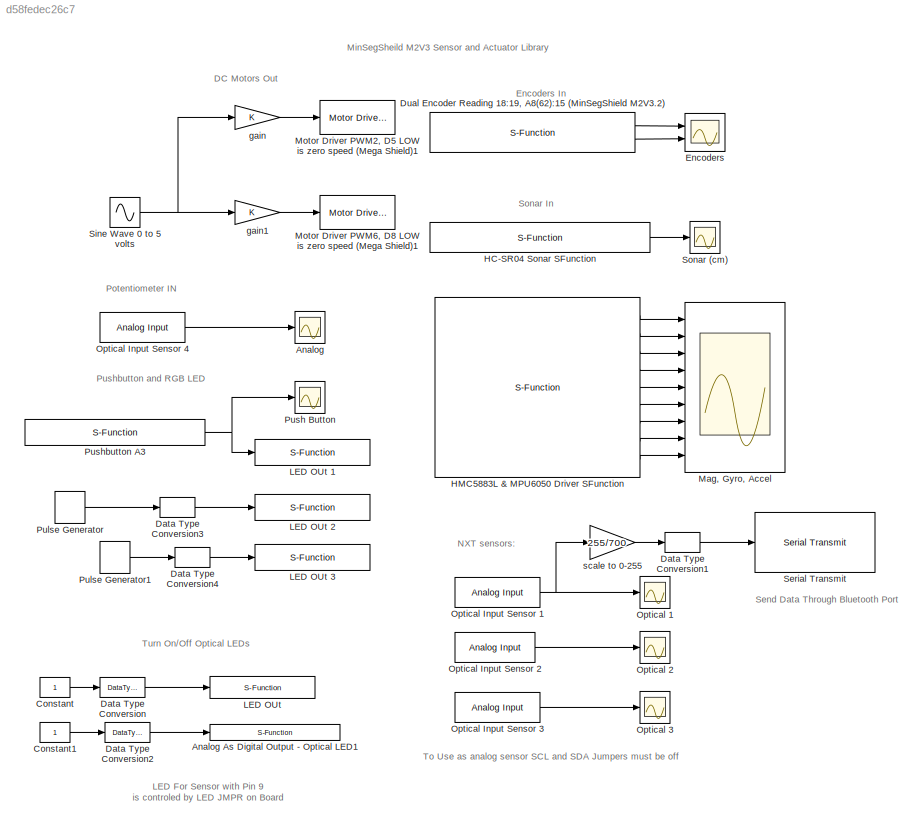
MODEL slx_d58fedec26c7
KIND model
BLOCK [Scope] Analog
  DataFormat = StructureWithTime
  Floating = off
  NumInputPorts = 1
  Ports = [1]
  SampleTime = 0
  SaveName = ScopeData6
  ShowLegends = off
  TimeRange = 30
  YMax = 1000
  YMin = 0
BLOCK [S-Function] Analog As Digital Output - Optical LED1
  CopyFcn = set_param(gcbh,'LinkStatus','none')
  EnableBusSupport = off
  FunctionName = sfcn_A2_out
  InitFcn = try, set_param(gcb,'FunctionName','sfcn_A2_out'), end
  OpenFcn = sfunctionwizard(gcbh)
  Parameters = uint8(12)
  Ports = [1]
  PreSaveFcn = try, set_param(gcb,'FunctionName','sfcn_A2_out'), end
  SFunctionModules = sfcn_A2_out_wrapper
BLOCK [Constant] Constant
  SampleTime = -1
BLOCK [Constant] Constant1
  SampleTime = -1
BLOCK [DataTypeConversion] Data Type Conversion
  OutDataTypeStr = boolean
  RndMeth = Floor
  SaturateOnIntegerOverflow = off
BLOCK [DataTypeConversion] Data Type Conversion1
  OutDataTypeStr = uint8
  RndMeth = Floor
  SaturateOnIntegerOverflow = off
BLOCK [DataTypeConversion] Data Type Conversion2
  OutDataTypeStr = boolean
  RndMeth = Floor
  SaturateOnIntegerOverflow = off
BLOCK [DataTypeConversion] Data Type Conversion3
  OutDataTypeStr = boolean
  RndMeth = Floor
  SaturateOnIntegerOverflow = off
BLOCK [DataTypeConversion] Data Type Conversion4
  OutDataTypeStr = boolean
  RndMeth = Floor
  SaturateOnIntegerOverflow = off
BLOCK [S-Function] Dual Encoder Reading 18:19, A8(62):15 (MinSegShield M2V3.2) 
  CopyFcn = set_param(gcbh,'LinkStatus','none')
  EnableBusSupport = off
  FunctionName = sf_QuadEncoder_18_19_15_62
  InitFcn = try, set_param(gcb,'FunctionName','sf_QuadEncoder_18_19_15_62'), end
  OpenFcn = sfunctionwizard(gcbh)
  Parameters = uint8([0 1]),uint8([18 62]),uint8([19 15])
  Ports = [0, 2]
  PreSaveFcn = try, set_param(gcb,'FunctionName','sf_QuadEncoder_18_19_15_62'), end
  SFunctionModules = sf_QuadEncoder_18_19_15_62_wrapper
BLOCK [Scope] Encoders
  DataFormat = StructureWithTime
  Floating = off
  NumInputPorts = 2
  Ports = [2]
  SampleTime = 0
  ShowLegends = off
  TimeRange = 10
  YMax = 2700~-500
  YMin = 1700~-1500
BLOCK [S-Function] HC-SR04 Sonar SFunction
  CopyFcn = set_param(gcbh,'LinkStatus','none')
  EnableBusSupport = off
  FunctionName = sf_HCSR04_12_11
  InitFcn = try, set_param(gcb,'FunctionName','sf_HCSR04_12_11'), end
  OpenFcn = sfunctionwizard(gcbh)
  Ports = [0, 1]
  PreSaveFcn = try, set_param(gcb,'FunctionName','sf_HCSR04_12_11'), end
  SFunctionModules = sf_HCSR04_12_11_wrapper
BLOCK [S-Function] HMC5883L & MPU6050 Driver SFunction
  CopyFcn = set_param(gcbh,'LinkStatus','none')
  EnableBusSupport = off
  FunctionName = sf_HMC5883L_MPU6050
  InitFcn = try, set_param(gcb,'FunctionName','sf_HMC5883L_MPU6050'), end
  OpenFcn = sfunctionwizard(gcbh)
  Ports = [0, 9]
  PreSaveFcn = try, set_param(gcb,'FunctionName','sf_HMC5883L_MPU6050'), end
  SFunctionModules = sf_HMC5883L_MPU6050_wrapper
BLOCK [S-Function] LED OUt 
  CopyFcn = set_param(gcbh,'LinkStatus','none')
  EnableBusSupport = off
  FunctionName = sfcn_A11_out
  InitFcn = try, set_param(gcb,'FunctionName','sfcn_A11_out'), end
  OpenFcn = sfunctionwizard(gcbh)
  Parameters = uint8(12)
  Ports = [1]
  PreSaveFcn = try, set_param(gcb,'FunctionName','sfcn_A11_out'), end
  SFunctionModules = sfcn_A11_out_wrapper
BLOCK [S-Function] LED OUt 1
  CopyFcn = set_param(gcbh,'LinkStatus','none')
  EnableBusSupport = off
  FunctionName = sfcn_A4_out
  InitFcn = try, set_param(gcb,'FunctionName','sfcn_A4_out'), end
  OpenFcn = sfunctionwizard(gcbh)
  Parameters = uint8(12)
  Ports = [1]
  PreSaveFcn = try, set_param(gcb,'FunctionName','sfcn_A4_out'), end
  SFunctionModules = sfcn_A4_out_wrapper
BLOCK [S-Function] LED OUt 2
  CopyFcn = set_param(gcbh,'LinkStatus','none')
  EnableBusSupport = off
  FunctionName = sfcn_A5_out
  InitFcn = try, set_param(gcb,'FunctionName','sfcn_A5_out'), end
  OpenFcn = sfunctionwizard(gcbh)
  Parameters = uint8(12)
  Ports = [1]
  PreSaveFcn = try, set_param(gcb,'FunctionName','sfcn_A5_out'), end
  SFunctionModules = sfcn_A5_out_wrapper
BLOCK [S-Function] LED OUt 3
  CopyFcn = set_param(gcbh,'LinkStatus','none')
  EnableBusSupport = off
  FunctionName = sfcn_A7_out
  InitFcn = try, set_param(gcb,'FunctionName','sfcn_A7_out'), end
  OpenFcn = sfunctionwizard(gcbh)
  Parameters = uint8(12)
  Ports = [1]
  PreSaveFcn = try, set_param(gcb,'FunctionName','sfcn_A7_out'), end
  SFunctionModules = sfcn_A7_out_wrapper
BLOCK [Scope] Mag, Gyro, Accel
  DataFormat = StructureWithTime
  Floating = off
  NumInputPorts = 9
  Ports = [9]
  SampleTime = 0
  SaveName = ScopeData1
  ShowLegends = off
  TimeRange = 10
  YMax = 20~-225~0~15000~5000~15000~3000~2500~20000
  YMin = -15~-375~-80~-15000~-6000~-20000~-500~-12500~11000
BLOCK [Reference] Motor Driver PWM2, D5 LOW is zero speed (Mega Shield)1  REF=MinSegLibrary_M2V3/Motor Driver
PWM2, D5
LOW is zero speed
(Mega Shield)
  Ports = [1]
  SourceBlock = MinSegLibrary_M2V3/Motor Driver\nPWM2, D5\nLOW is zero speed\n(Mega Shield)
  SourceType = SubSystem
BLOCK [Reference] Motor Driver PWM6, D8 LOW is zero speed (Mega Shield)1  REF=MinSegLibrary_M2V3/Motor Driver
PWM6, D8
LOW is zero speed
(Mega Shield)
  Ports = [1]
  SourceBlock = MinSegLibrary_M2V3/Motor Driver\nPWM6, D8\nLOW is zero speed\n(Mega Shield)
  SourceType = SubSystem
BLOCK [Scope] Optical 1
  DataFormat = StructureWithTime
  Floating = off
  NumInputPorts = 1
  Ports = [1]
  SampleTime = 0
  SaveName = ScopeData4
  ShowLegends = off
  TimeRange = 30
  YMax = 1000
  YMin = 0
BLOCK [Scope] Optical 2
  DataFormat = StructureWithTime
  Floating = off
  NumInputPorts = 1
  Ports = [1]
  SampleTime = 0
  SaveName = ScopeData3
  ShowLegends = off
  TimeRange = 30
  YMax = 1000
  YMin = 0
BLOCK [Scope] Optical 3
  DataFormat = StructureWithTime
  Floating = off
  NumInputPorts = 1
  Ports = [1]
  SampleTime = 0
  SaveName = ScopeData5
  ShowLegends = off
  TimeRange = 30
  YMax = 1000
  YMin = 0
BLOCK [Reference] Optical Input Sensor 1  REF=arduinolib/Analog Input
  Ports = [0, 1]
  SourceBlock = arduinolib/Analog Input
  SourceType = Arduino Analog Input
  pinNumber = 10
  sampleTime = -1
BLOCK [Reference] Optical Input Sensor 2  REF=arduinolib/Analog Input
  Ports = [0, 1]
  SourceBlock = arduinolib/Analog Input
  SourceType = Arduino Analog Input
  pinNumber = 1
  sampleTime = -1
BLOCK [Reference] Optical Input Sensor 3  REF=arduinolib/Analog Input
  Ports = [0, 1]
  SourceBlock = arduinolib/Analog Input
  SourceType = Arduino Analog Input
  pinNumber = 9
  sampleTime = -1
BLOCK [Reference] Optical Input Sensor 4  REF=arduinolib/Analog Input
  Ports = [0, 1]
  SourceBlock = arduinolib/Analog Input
  SourceType = Arduino Analog Input
  pinNumber = 0
  sampleTime = -1
BLOCK [DiscretePulseGenerator] Pulse Generator
  Period = 10
  Ports = [0, 1]
  PulseType = Time based
  PulseWidth = 50
BLOCK [DiscretePulseGenerator] Pulse Generator1
  Period = 5
  Ports = [0, 1]
  PulseType = Time based
  PulseWidth = 50
BLOCK [Scope] Push Button
  DataFormat = StructureWithTime
  Floating = off
  NumInputPorts = 1
  Ports = [1]
  SampleTime = 0
  SaveName = ScopeData7
  ShowLegends = off
  TimeRange = 30
  YMax = 1.05
  YMin = 0.95
BLOCK [S-Function] Pushbutton A3
  CopyFcn = set_param(gcbh,'LinkStatus','none')
  EnableBusSupport = off
  FunctionName = sfcn_A3_IN
  InitFcn = try, set_param(gcb,'FunctionName','sfcn_A3_IN'), end
  OpenFcn = sfunctionwizard(gcbh)
  Ports = [0, 1]
  PreSaveFcn = try, set_param(gcb,'FunctionName','sfcn_A3_IN'), end
  SFunctionModules = sfcn_A3_IN_wrapper
BLOCK [Reference] Serial Transmit  REF=arduinolib/Serial Transmit
  Ports = [1]
  SourceBlock = arduinolib/Serial Transmit
  SourceType = Arduino Serial Transmit
  portNumber = 2
BLOCK [Sin] Sine Wave 0 to 5 volts
  Amplitude = 5
  Frequency = 50*2*pi
  Ports = [0, 1]
  SampleTime = .1
  Samples = 30
  SineType = Sample based
BLOCK [Scope] Sonar (cm)
  DataFormat = StructureWithTime
  Floating = off
  NumInputPorts = 1
  Ports = [1]
  SampleTime = 0
  SaveName = ScopeData2
  ShowLegends = off
  TimeRange = 10
  YMax = 175
  YMin = 0
BLOCK [Gain] gain
  OutDataTypeStr = int16
  ParamDataTypeStr = Inherit: Inherit via internal rule
  SaturateOnIntegerOverflow = off
BLOCK [Gain] gain1
  OutDataTypeStr = int16
  ParamDataTypeStr = Inherit: Inherit via internal rule
  SaturateOnIntegerOverflow = off
BLOCK [Gain] scale to 0-255
  Gain = 255/700
  OutDataTypeStr = int16
  ParamDataTypeStr = Inherit: Inherit via internal rule
  SaturateOnIntegerOverflow = off
ANNOTATION (root): DC Motors Out
ANNOTATION (root): Encoders In
ANNOTATION (root): LED For Sensor with Pin 9 is controled by LED JMPR on Board
ANNOTATION (root): MinSegSheild M2V3 Sensor and Actuator Library
ANNOTATION (root): NXT sensors:
ANNOTATION (root): Potentiometer IN
ANNOTATION (root): Pushbutton and RGB LED
ANNOTATION (root): Send Data Through Bluetooth Port
ANNOTATION (root): Sonar In
ANNOTATION (root): To Use as analog sensor SCL and SDA Jumpers must be off
ANNOTATION (root): Turn On/Off Optical LEDs
LINE Constant1:1 -> Data Type Conversion2:1
LINE Constant:1 -> Data Type Conversion:1
LINE Data Type Conversion1:1 -> Serial Transmit:1
LINE Data Type Conversion2:1 -> Analog As Digital Output - Optical LED1:1
LINE Data Type Conversion3:1 -> LED OUt 2:1
LINE Data Type Conversion4:1 -> LED OUt 3:1
LINE Data Type Conversion:1 -> LED OUt :1
LINE Dual Encoder Reading 18:19, A8(62):15 (MinSegShield M2V3.2) :1 -> Encoders:1
LINE Dual Encoder Reading 18:19, A8(62):15 (MinSegShield M2V3.2) :2 -> Encoders:2
LINE HC-SR04 Sonar SFunction:1 -> Sonar (cm):1
LINE HMC5883L & MPU6050 Driver SFunction:1 -> Mag, Gyro, Accel:1
LINE HMC5883L & MPU6050 Driver SFunction:2 -> Mag, Gyro, Accel:2
LINE HMC5883L & MPU6050 Driver SFunction:3 -> Mag, Gyro, Accel:3
LINE HMC5883L & MPU6050 Driver SFunction:4 -> Mag, Gyro, Accel:4
LINE HMC5883L & MPU6050 Driver SFunction:5 -> Mag, Gyro, Accel:5
LINE HMC5883L & MPU6050 Driver SFunction:6 -> Mag, Gyro, Accel:6
LINE HMC5883L & MPU6050 Driver SFunction:7 -> Mag, Gyro, Accel:7
LINE HMC5883L & MPU6050 Driver SFunction:8 -> Mag, Gyro, Accel:8
LINE HMC5883L & MPU6050 Driver SFunction:9 -> Mag, Gyro, Accel:9
NET Optical Input Sensor 1:1 -> Optical 1:1, scale to 0-255:1
LINE Optical Input Sensor 2:1 -> Optical 2:1
LINE Optical Input Sensor 3:1 -> Optical 3:1
LINE Optical Input Sensor 4:1 -> Analog:1
LINE Pulse Generator1:1 -> Data Type Conversion4:1
LINE Pulse Generator:1 -> Data Type Conversion3:1
NET Pushbutton A3:1 -> LED OUt 1:1, Push Button:1
NET Sine Wave 0 to 5 volts:1 -> gain1:1, gain:1
LINE gain1:1 -> Motor Driver PWM6, D8 LOW is zero speed (Mega Shield)1:1
LINE gain:1 -> Motor Driver PWM2, D5 LOW is zero speed (Mega Shield)1:1
LINE scale to 0-255:1 -> Data Type Conversion1:1
note: NET lines group one-source signal fan-out (src -> all destinations, sorted); 1:1 wires keep LINE
